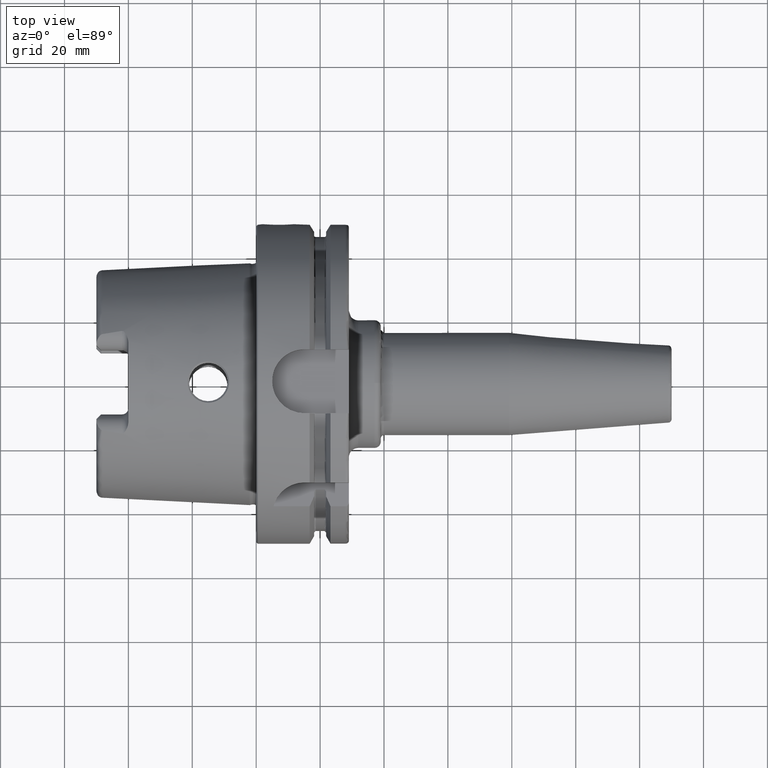
[diagram: clean part render]
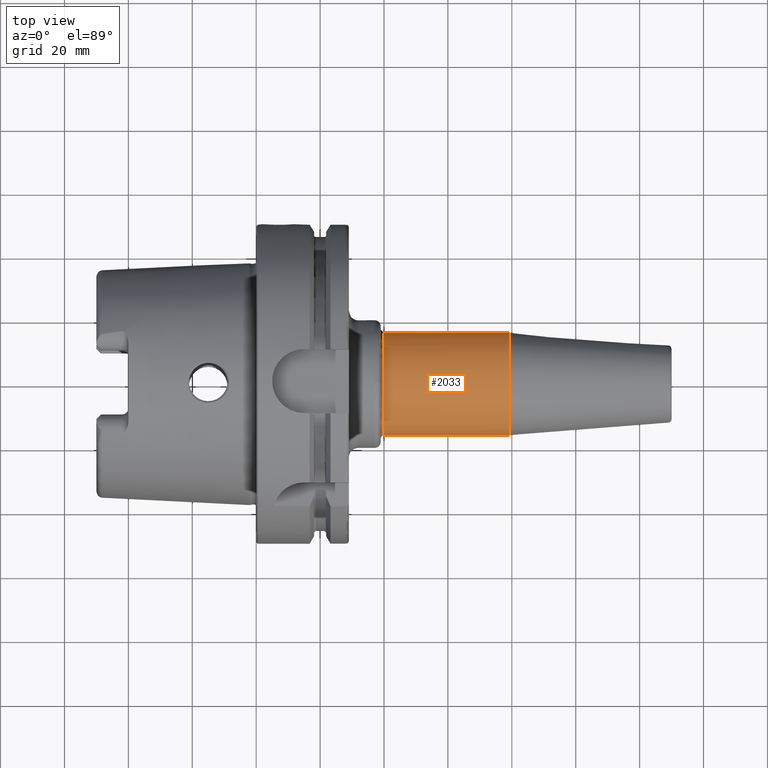
[diagram: same view with one face highlighted and labeled with its STEP entity id]
A machine part, top view. The second image highlights one B-rep face of the part: STEP entity #2033.
In plain terms, the highlighted cylindrical surface (bore or boss wall) has radius 16 mm, axis along (1, 0, 0).
Its self-contained STEP definition (entity closure, byte-faithful):
#177=CYLINDRICAL_SURFACE('',#2188,16.);
#219=FACE_OUTER_BOUND('',#343,.T.);
#343=EDGE_LOOP('',(#1383,#1384,#1385,#1386,#1387));
#477=LINE('',#3123,#585);
#585=VECTOR('',#2482,16.);
#693=CIRCLE('',#2184,16.);
#694=CIRCLE('',#2185,16.);
#696=CIRCLE('',#2189,16.);
#834=VERTEX_POINT('',#3112);
#835=VERTEX_POINT('',#3114);
#837=VERTEX_POINT('',#3121);
#1048=EDGE_CURVE('',#834,#835,#693,.T.);
#1049=EDGE_CURVE('',#835,#834,#694,.T.);
#1051=EDGE_CURVE('',#837,#837,#696,.T.);
#1052=EDGE_CURVE('',#837,#835,#477,.T.);
#1383=ORIENTED_EDGE('',*,*,#1051,.F.);
#1384=ORIENTED_EDGE('',*,*,#1052,.T.);
#1385=ORIENTED_EDGE('',*,*,#1048,.F.);
#1386=ORIENTED_EDGE('',*,*,#1049,.F.);
#1387=ORIENTED_EDGE('',*,*,#1052,.F.);
#2033=ADVANCED_FACE('',(#219),#177,.T.);
#2184=AXIS2_PLACEMENT_3D('',#3115,#2470,#2471);
#2185=AXIS2_PLACEMENT_3D('',#3116,#2472,#2473);
#2188=AXIS2_PLACEMENT_3D('',#3120,#2478,#2479);
#2189=AXIS2_PLACEMENT_3D('',#3122,#2480,#2481);
#2470=DIRECTION('center_axis',(-1.,0.,0.));
#2471=DIRECTION('ref_axis',(0.,-1.,1.83697019872103E-16));
#2472=DIRECTION('center_axis',(-1.,0.,0.));
#2473=DIRECTION('ref_axis',(0.,-1.,1.83697019872103E-16));
#2478=DIRECTION('center_axis',(1.,0.,0.));
#2479=DIRECTION('ref_axis',(0.,1.,0.));
#2480=DIRECTION('center_axis',(1.,0.,0.));
#2481=DIRECTION('ref_axis',(0.,0.,-1.));
#2482=DIRECTION('',(-1.,0.,0.));
#3112=CARTESIAN_POINT('',(40.,-1.95943487863576E-15,16.));
#3114=CARTESIAN_POINT('',(40.,-16.,-1.95943487863576E-15));
#3115=CARTESIAN_POINT('Origin',(40.,0.,0.));
#3116=CARTESIAN_POINT('Origin',(40.,0.,0.));
#3120=CARTESIAN_POINT('Origin',(59.0875905276506,0.,0.));
#3121=CARTESIAN_POINT('',(79.1751810553013,-16.,-1.95943487863576E-15));
#3122=CARTESIAN_POINT('Origin',(79.1751810553013,0.,0.));
#3123=CARTESIAN_POINT('',(59.0875905276506,-16.,-1.95943487863576E-15));